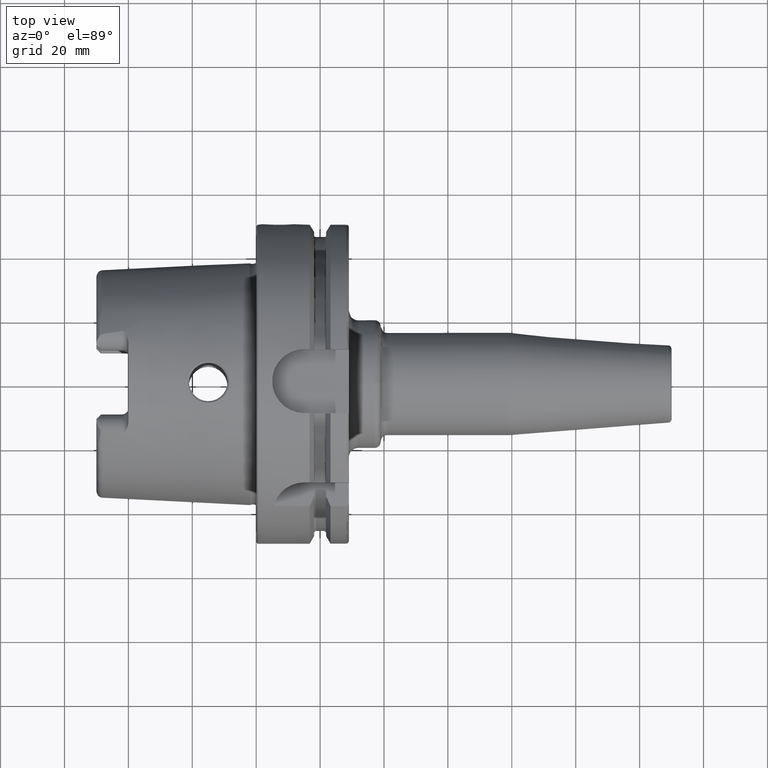
[diagram: clean part render]
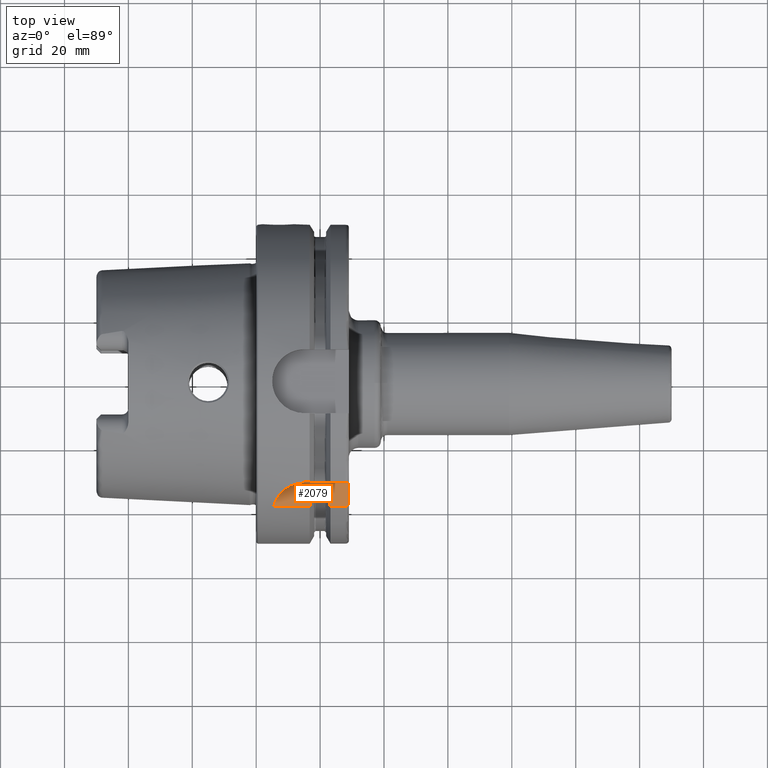
[diagram: same view with one face highlighted and labeled with its STEP entity id]
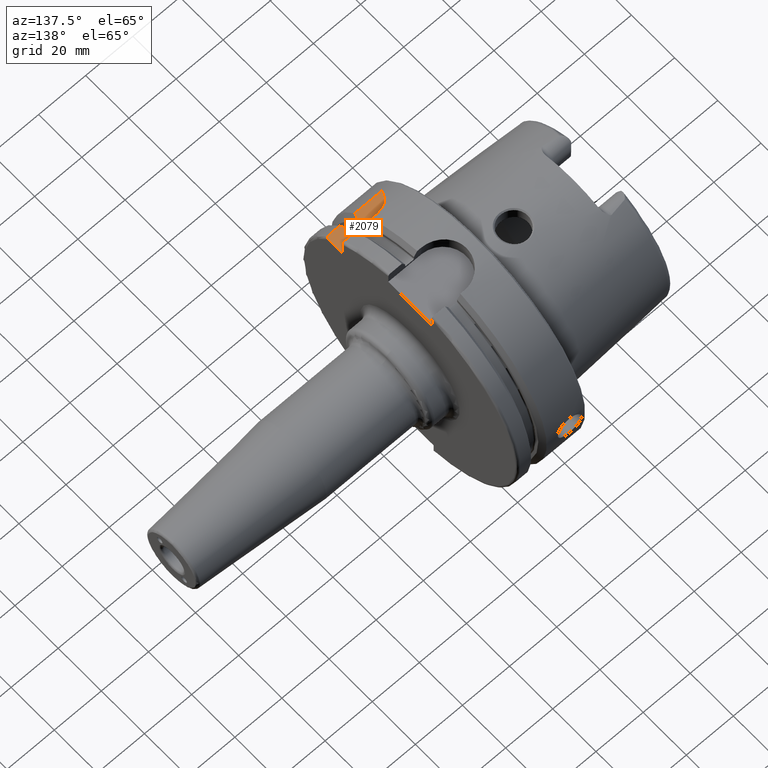
[diagram: same view with one face highlighted and labeled with its STEP entity id]
A machine part, top view. The second image highlights one B-rep face of the part: STEP entity #2079.
A second angle (auxiliary view) of the same face is appended — the face is thin or edge-on in the first view.
In plain terms, the highlighted planar face has unit normal (0, 0, 1).
Its self-contained STEP definition (entity closure, byte-faithful):
#19=(
BOUNDED_CURVE()
B_SPLINE_CURVE(2,(#4076,#4077,#4078),.UNSPECIFIED.,.F.,.F.)
B_SPLINE_CURVE_WITH_KNOTS((3,3),(0.,0.343884390880417),.UNSPECIFIED.)
CURVE()
GEOMETRIC_REPRESENTATION_ITEM()
RATIONAL_B_SPLINE_CURVE((1.,1.00052016257104,1.))
REPRESENTATION_ITEM('')
);
#20=(
BOUNDED_CURVE()
B_SPLINE_CURVE(2,(#4108,#4109,#4110),.UNSPECIFIED.,.F.,.F.)
B_SPLINE_CURVE_WITH_KNOTS((3,3),(0.,0.343884390880419),.UNSPECIFIED.)
CURVE()
GEOMETRIC_REPRESENTATION_ITEM()
RATIONAL_B_SPLINE_CURVE((1.,1.00052016257005,1.))
REPRESENTATION_ITEM('')
);
#62=B_SPLINE_CURVE_WITH_KNOTS('',3,(#4082,#4083,#4084,#4085,#4086,#4087,
#4088,#4089,#4090,#4091),.UNSPECIFIED.,.F.,.F.,(4,2,2,2,4),(-0.175716275951496,
-0.15902214964786,-0.139262857016594,-0.115342898112829,-0.0876407705892815),
 .UNSPECIFIED.);
#63=B_SPLINE_CURVE_WITH_KNOTS('',3,(#4095,#4096,#4097,#4098,#4099,#4100,
#4101,#4102,#4103,#4104),.UNSPECIFIED.,.F.,.F.,(4,2,2,2,4),(0.0876407705892814,
0.115342898112828,0.139262857016592,0.15902214964786,0.175716275951495),
 .UNSPECIFIED.);
#64=B_SPLINE_CURVE_WITH_KNOTS('',3,(#4113,#4114,#4115,#4116,#4117,#4118,
#4119,#4120,#4121,#4122),.UNSPECIFIED.,.F.,.F.,(4,2,2,2,4),(-0.170825962094808,
-0.118543630596578,-0.0729156509442915,-0.0340271521483428,0.),
 .UNSPECIFIED.);
#112=PLANE('',#2297);
#257=FACE_OUTER_BOUND('',#388,.T.);
#388=EDGE_LOOP('',(#1616,#1617,#1618,#1619,#1620,#1621,#1622,#1623,#1624,
#1625,#1626,#1627,#1628));
#479=LINE('',#3176,#587);
#518=LINE('',#4023,#626);
#523=LINE('',#4074,#631);
#524=LINE('',#4080,#632);
#525=LINE('',#4093,#633);
#526=LINE('',#4106,#634);
#527=LINE('',#4112,#635);
#587=VECTOR('',#2541,10.);
#626=VECTOR('',#2734,10.);
#631=VECTOR('',#2741,10.);
#632=VECTOR('',#2742,10.);
#633=VECTOR('',#2743,10.);
#634=VECTOR('',#2744,10.);
#635=VECTOR('',#2745,10.);
#750=CIRCLE('',#2295,10.);
#849=VERTEX_POINT('',#3174);
#850=VERTEX_POINT('',#3175);
#936=VERTEX_POINT('',#4003);
#938=VERTEX_POINT('',#4017);
#948=VERTEX_POINT('',#4073);
#949=VERTEX_POINT('',#4075);
#950=VERTEX_POINT('',#4079);
#951=VERTEX_POINT('',#4081);
#952=VERTEX_POINT('',#4092);
#953=VERTEX_POINT('',#4094);
#954=VERTEX_POINT('',#4105);
#955=VERTEX_POINT('',#4107);
#956=VERTEX_POINT('',#4111);
#1072=EDGE_CURVE('',#849,#850,#479,.T.);
#1187=EDGE_CURVE('',#938,#936,#750,.T.);
#1190=EDGE_CURVE('',#849,#938,#518,.T.);
#1200=EDGE_CURVE('',#948,#936,#523,.T.);
#1201=EDGE_CURVE('',#949,#948,#19,.T.);
#1202=EDGE_CURVE('',#950,#949,#524,.T.);
#1203=EDGE_CURVE('',#951,#950,#62,.T.);
#1204=EDGE_CURVE('',#952,#951,#525,.T.);
#1205=EDGE_CURVE('',#953,#952,#63,.T.);
#1206=EDGE_CURVE('',#954,#953,#526,.T.);
#1207=EDGE_CURVE('',#955,#954,#20,.T.);
#1208=EDGE_CURVE('',#956,#955,#527,.T.);
#1209=EDGE_CURVE('',#850,#956,#64,.T.);
#1616=ORIENTED_EDGE('',*,*,#1200,.F.);
#1617=ORIENTED_EDGE('',*,*,#1201,.F.);
#1618=ORIENTED_EDGE('',*,*,#1202,.F.);
#1619=ORIENTED_EDGE('',*,*,#1203,.F.);
#1620=ORIENTED_EDGE('',*,*,#1204,.F.);
#1621=ORIENTED_EDGE('',*,*,#1205,.F.);
#1622=ORIENTED_EDGE('',*,*,#1206,.F.);
#1623=ORIENTED_EDGE('',*,*,#1207,.F.);
#1624=ORIENTED_EDGE('',*,*,#1208,.F.);
#1625=ORIENTED_EDGE('',*,*,#1209,.F.);
#1626=ORIENTED_EDGE('',*,*,#1072,.F.);
#1627=ORIENTED_EDGE('',*,*,#1190,.T.);
#1628=ORIENTED_EDGE('',*,*,#1187,.T.);
#2079=ADVANCED_FACE('',(#257),#112,.T.);
#2295=AXIS2_PLACEMENT_3D('',#4018,#2728,#2729);
#2297=AXIS2_PLACEMENT_3D('',#4072,#2739,#2740);
#2541=DIRECTION('',(0.,-1.,0.));
#2728=DIRECTION('center_axis',(0.,0.,1.));
#2729=DIRECTION('ref_axis',(0.,1.,0.));
#2734=DIRECTION('',(-1.,3.17206578464331E-16,0.));
#2739=DIRECTION('center_axis',(0.,0.,1.));
#2740=DIRECTION('ref_axis',(1.,0.,0.));
#2741=DIRECTION('',(-1.,0.,0.));
#2742=DIRECTION('',(0.,-1.,0.));
#2743=DIRECTION('',(-1.,0.,0.));
#2744=DIRECTION('',(0.,1.,0.));
#2745=DIRECTION('',(-1.,0.,0.));
#3174=CARTESIAN_POINT('',(29.,-31.5,31.5));
#3175=CARTESIAN_POINT('',(29.,-37.5333185316726,31.5));
#3176=CARTESIAN_POINT('',(29.,-18.25,31.5));
#4003=CARTESIAN_POINT('',(5.36310214079494,-38.8297566307078,31.5));
#4017=CARTESIAN_POINT('',(15.,-31.5,31.5));
#4018=CARTESIAN_POINT('Origin',(15.,-41.5,31.5));
#4023=CARTESIAN_POINT('',(29.,-31.5,31.5));
#4072=CARTESIAN_POINT('Origin',(17.,-36.5,31.5));
#4073=CARTESIAN_POINT('',(16.7379709790786,-38.8297566307078,31.5));
#4074=CARTESIAN_POINT('',(8.61898548953931,-38.8297566307078,31.5));
#4075=CARTESIAN_POINT('',(18.125,-35.6830642593065,31.5));
#4076=CARTESIAN_POINT('Ctrl Pts',(18.125,-35.6830642593066,31.5));
#4077=CARTESIAN_POINT('Ctrl Pts',(17.4607727557241,-37.2176818849689,31.5));
#4078=CARTESIAN_POINT('Ctrl Pts',(16.7379709790786,-38.8297566307079,31.5));
#4079=CARTESIAN_POINT('',(18.125,-34.2052627529741,31.5));
#4080=CARTESIAN_POINT('',(18.125,5.,31.5));
#4081=CARTESIAN_POINT('',(18.625,-33.5223805837235,31.5));
#4082=CARTESIAN_POINT('Ctrl Pts',(18.625,-33.5223805837235,31.5));
#4083=CARTESIAN_POINT('Ctrl Pts',(18.5693529123212,-33.5223805837235,31.5));
#4084=CARTESIAN_POINT('Ctrl Pts',(18.5045806209474,-33.538617945543,31.5));
#4085=CARTESIAN_POINT('Ctrl Pts',(18.3957531993943,-33.5926698815421,31.5));
#4086=CARTESIAN_POINT('Ctrl Pts',(18.3354671583148,-33.6437821851056,31.5));
#4087=CARTESIAN_POINT('Ctrl Pts',(18.2428076522704,-33.7560891280603,31.5));
#4088=CARTESIAN_POINT('Ctrl Pts',(18.1981986617216,-33.8407334953009,31.5));
#4089=CARTESIAN_POINT('Ctrl Pts',(18.1422893312478,-34.003470946295,31.5));
#4090=CARTESIAN_POINT('Ctrl Pts',(18.125,-34.1129223278956,31.5));
#4091=CARTESIAN_POINT('Ctrl Pts',(18.125,-34.2052627529741,31.5));
#4092=CARTESIAN_POINT('',(21.375,-33.5223805837235,31.5));
#4093=CARTESIAN_POINT('',(20.,-33.5223805837235,31.5));
#4094=CARTESIAN_POINT('',(21.875,-34.2052627529741,31.5));
#4095=CARTESIAN_POINT('Ctrl Pts',(21.875,-34.2052627529741,31.5));
#4096=CARTESIAN_POINT('Ctrl Pts',(21.875,-34.1129223278957,31.5));
#4097=CARTESIAN_POINT('Ctrl Pts',(21.8577106687523,-34.003470946295,31.5));
#4098=CARTESIAN_POINT('Ctrl Pts',(21.8018013382784,-33.8407334953009,31.5));
#4099=CARTESIAN_POINT('Ctrl Pts',(21.7571923477296,-33.7560891280604,31.5));
#4100=CARTESIAN_POINT('Ctrl Pts',(21.6645328416852,-33.6437821851056,31.5));
#4101=CARTESIAN_POINT('Ctrl Pts',(21.6042468006057,-33.5926698815421,31.5));
#4102=CARTESIAN_POINT('Ctrl Pts',(21.4954193790526,-33.538617945543,31.5));
#4103=CARTESIAN_POINT('Ctrl Pts',(21.4306470876788,-33.5223805837235,31.5));
#4104=CARTESIAN_POINT('Ctrl Pts',(21.375,-33.5223805837235,31.5));
#4105=CARTESIAN_POINT('',(21.875,-35.6830642593065,31.5));
#4106=CARTESIAN_POINT('',(21.875,5.54879763209582,31.5));
#4107=CARTESIAN_POINT('',(23.2620290209214,-38.8297566307078,31.5));
#4108=CARTESIAN_POINT('Ctrl Pts',(23.2620290209214,-38.8297566307078,31.5));
#4109=CARTESIAN_POINT('Ctrl Pts',(22.5392272442767,-37.2176818849707,31.5));
#4110=CARTESIAN_POINT('Ctrl Pts',(21.875,-35.6830642593065,31.5));
#4111=CARTESIAN_POINT('',(28.,-38.8297566307078,31.5));
#4112=CARTESIAN_POINT('',(25.6310145104607,-38.8297566307078,31.5));
#4113=CARTESIAN_POINT('Ctrl Pts',(29.,-37.5333185316726,31.5));
#4114=CARTESIAN_POINT('Ctrl Pts',(29.,-37.7075929700001,31.5));
#4115=CARTESIAN_POINT('Ctrl Pts',(28.9664820083304,-37.9140187901503,31.5));
#4116=CARTESIAN_POINT('Ctrl Pts',(28.8572425149189,-38.2215616508799,31.5));
#4117=CARTESIAN_POINT('Ctrl Pts',(28.7693181429129,-38.3814988424326,31.5));
#4118=CARTESIAN_POINT('Ctrl Pts',(28.5860354601279,-38.5954486383736,31.5));
#4119=CARTESIAN_POINT('Ctrl Pts',(28.4650491410143,-38.6932205975694,31.5));
#4120=CARTESIAN_POINT('Ctrl Pts',(28.2458099245109,-38.7981421072727,31.5));
#4121=CARTESIAN_POINT('Ctrl Pts',(28.1134238404945,-38.8297566307078,31.5));
#4122=CARTESIAN_POINT('Ctrl Pts',(28.,-38.8297566307078,31.5));